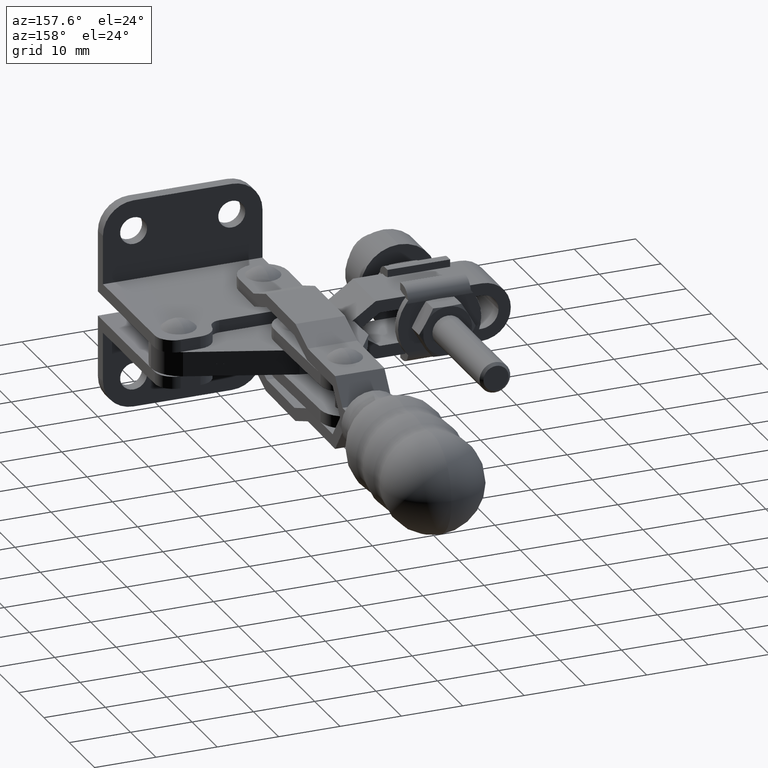
[diagram: clean part render]
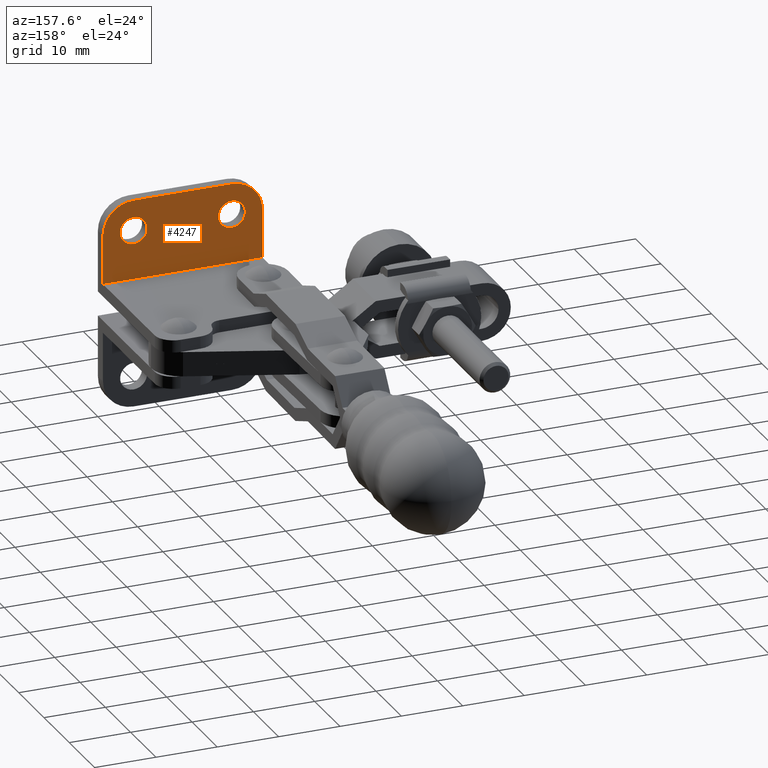
[diagram: same view with one face highlighted and labeled with its STEP entity id]
A machine part, auxiliary view. The second image highlights one B-rep face of the part: STEP entity #4247.
In plain terms, the highlighted planar face has unit normal (0, -1, 0).
Its self-contained STEP definition (entity closure, byte-faithful):
#130 = VERTEX_POINT ( 'NONE', #5649 ) ;
#386 = DIRECTION ( 'NONE',  ( 0.0000000000000000000, -1.000000000000000000, 0.0000000000000000000 ) ) ;
#496 = VERTEX_POINT ( 'NONE', #1869 ) ;
#507 = FACE_BOUND ( 'NONE', #4465, .T. ) ;
#584 = EDGE_CURVE ( 'NONE', #130, #8646, #9175, .T. ) ;
#701 = CARTESIAN_POINT ( 'NONE',  ( -5.000000000000060400, 2.000000000000000000, 7.799999999999975000 ) ) ;
#756 = DIRECTION ( 'NONE',  ( 1.000000000000000000, 0.0000000000000000000, 0.0000000000000000000 ) ) ;
#786 = CARTESIAN_POINT ( 'NONE',  ( -20.99999999999996400, 2.000000000000000000, 10.00000000000001100 ) ) ;
#802 = CARTESIAN_POINT ( 'NONE',  ( -5.000000000000059500, 2.000000000000000000, 15.00000000000001400 ) ) ;
#860 = CARTESIAN_POINT ( 'NONE',  ( -25.99999999999996800, 2.000000000000000000, 2.000000000000001800 ) ) ;
#909 = EDGE_CURVE ( 'NONE', #496, #130, #3464, .T. ) ;
#1222 = EDGE_CURVE ( 'NONE', #4986, #4198, #3747, .T. ) ;
#1271 = DIRECTION ( 'NONE',  ( -1.000000000000000000, -0.0000000000000000000, -0.0000000000000000000 ) ) ;
#1385 = LINE ( 'NONE', #7089, #9017 ) ;
#1516 = ORIENTED_EDGE ( 'NONE', *, *, #3374, .T. ) ;
#1658 = DIRECTION ( 'NONE',  ( 0.0000000000000000000, 0.0000000000000000000, -1.000000000000000000 ) ) ;
#1695 = LINE ( 'NONE', #11131, #5760 ) ;
#1799 = EDGE_CURVE ( 'NONE', #3948, #496, #1385, .T. ) ;
#1831 = AXIS2_PLACEMENT_3D ( 'NONE', #8469, #2607, #9197 ) ;
#1869 = CARTESIAN_POINT ( 'NONE',  ( -20.99999999999996400, 2.000000000000000000, 15.00000000000001400 ) ) ;
#1909 = CARTESIAN_POINT ( 'NONE',  ( -5.000000000000060400, 2.000000000000000000, 10.00000000000001100 ) ) ;
#2242 = DIRECTION ( 'NONE',  ( 0.0000000000000000000, -1.000000000000000000, 0.0000000000000000000 ) ) ;
#2280 = VECTOR ( 'NONE', #2378, 1000.000000000000000 ) ;
#2378 = DIRECTION ( 'NONE',  ( -5.637851296924616700E-015, 0.0000000000000000000, 1.000000000000000000 ) ) ;
#2607 = DIRECTION ( 'NONE',  ( 0.0000000000000000000, -1.000000000000000000, 0.0000000000000000000 ) ) ;
#2758 = DIRECTION ( 'NONE',  ( 0.0000000000000000000, 0.0000000000000000000, -1.000000000000000000 ) ) ;
#2771 = EDGE_LOOP ( 'NONE', ( #8956, #1516 ) ) ;
#2975 = PLANE ( 'NONE',  #10672 ) ;
#3133 = AXIS2_PLACEMENT_3D ( 'NONE', #786, #6839, #1658 ) ;
#3139 = CARTESIAN_POINT ( 'NONE',  ( -5.000000000000060400, 2.000000000000000000, 10.00000000000001100 ) ) ;
#3279 = ORIENTED_EDGE ( 'NONE', *, *, #1799, .F. ) ;
#3299 = ORIENTED_EDGE ( 'NONE', *, *, #8550, .F. ) ;
#3374 = EDGE_CURVE ( 'NONE', #4198, #4986, #7030, .T. ) ;
#3390 = CIRCLE ( 'NONE', #5593, 5.000000000000004400 ) ;
#3464 = CIRCLE ( 'NONE', #1831, 5.000000000000004400 ) ;
#3723 = CARTESIAN_POINT ( 'NONE',  ( -20.99999999999996400, 2.000000000000000000, 10.00000000000001100 ) ) ;
#3747 = CIRCLE ( 'NONE', #5470, 2.200000000000035300 ) ;
#3937 = ORIENTED_EDGE ( 'NONE', *, *, #6422, .T. ) ;
#3948 = VERTEX_POINT ( 'NONE', #802 ) ;
#4016 = DIRECTION ( 'NONE',  ( 0.0000000000000000000, 0.0000000000000000000, -1.000000000000000000 ) ) ;
#4198 = VERTEX_POINT ( 'NONE', #8977 ) ;
#4247 = ADVANCED_FACE ( 'NONE', ( #507, #7428, #5139 ), #2975, .F. ) ;
#4465 = EDGE_LOOP ( 'NONE', ( #7310, #3937 ) ) ;
#4606 = DIRECTION ( 'NONE',  ( 0.0000000000000000000, 0.0000000000000000000, -1.000000000000000000 ) ) ;
#4728 = CARTESIAN_POINT ( 'NONE',  ( -20.99999999999996400, 2.000000000000000000, 10.00000000000001100 ) ) ;
#4986 = VERTEX_POINT ( 'NONE', #701 ) ;
#5139 = FACE_OUTER_BOUND ( 'NONE', #9484, .T. ) ;
#5470 = AXIS2_PLACEMENT_3D ( 'NONE', #1909, #2242, #10943 ) ;
#5593 = AXIS2_PLACEMENT_3D ( 'NONE', #3139, #9206, #4016 ) ;
#5649 = CARTESIAN_POINT ( 'NONE',  ( -25.99999999999996800, 2.000000000000000000, 10.00000000000001100 ) ) ;
#5760 = VECTOR ( 'NONE', #756, 1000.000000000000000 ) ;
#6374 = CARTESIAN_POINT ( 'NONE',  ( -5.551115123125782700E-014, 2.000000000000000000, 10.00000000000001100 ) ) ;
#6409 = CARTESIAN_POINT ( 'NONE',  ( -20.99999999999996400, 2.000000000000000000, 12.19999999999999000 ) ) ;
#6422 = EDGE_CURVE ( 'NONE', #10904, #7924, #8577, .T. ) ;
#6440 = DIRECTION ( 'NONE',  ( 0.0000000000000000000, -0.0000000000000000000, -1.000000000000000000 ) ) ;
#6577 = VECTOR ( 'NONE', #2758, 1000.000000000000000 ) ;
#6839 = DIRECTION ( 'NONE',  ( 0.0000000000000000000, -1.000000000000000000, 0.0000000000000000000 ) ) ;
#6885 = LINE ( 'NONE', #8436, #2280 ) ;
#6932 = CARTESIAN_POINT ( 'NONE',  ( -25.99999999999996800, 2.000000000000000000, 10.00000000000001100 ) ) ;
#7030 = CIRCLE ( 'NONE', #9436, 2.200000000000035300 ) ;
#7089 = CARTESIAN_POINT ( 'NONE',  ( -20.99999999999996400, 2.000000000000000000, 15.00000000000001400 ) ) ;
#7307 = EDGE_CURVE ( 'NONE', #9623, #10865, #6885, .T. ) ;
#7310 = ORIENTED_EDGE ( 'NONE', *, *, #10043, .T. ) ;
#7428 = FACE_BOUND ( 'NONE', #2771, .T. ) ;
#7924 = VERTEX_POINT ( 'NONE', #10224 ) ;
#7973 = CARTESIAN_POINT ( 'NONE',  ( 4.934324553889581300E-015, 2.000000000000000000, 2.000000000000000000 ) ) ;
#8005 = DIRECTION ( 'NONE',  ( 0.0000000000000000000, 0.0000000000000000000, -1.000000000000000000 ) ) ;
#8113 = DIRECTION ( 'NONE',  ( 0.0000000000000000000, -1.000000000000000000, 0.0000000000000000000 ) ) ;
#8189 = CARTESIAN_POINT ( 'NONE',  ( -5.000000000000060400, 2.000000000000000000, 10.00000000000001100 ) ) ;
#8436 = CARTESIAN_POINT ( 'NONE',  ( -1.040834085586084300E-014, 2.000000000000000000, 2.000000000000001800 ) ) ;
#8447 = ORIENTED_EDGE ( 'NONE', *, *, #7307, .F. ) ;
#8469 = CARTESIAN_POINT ( 'NONE',  ( -20.99999999999996400, 2.000000000000000000, 10.00000000000001100 ) ) ;
#8550 = EDGE_CURVE ( 'NONE', #8646, #9623, #1695, .T. ) ;
#8577 = CIRCLE ( 'NONE', #10407, 2.199999999999979700 ) ;
#8646 = VERTEX_POINT ( 'NONE', #860 ) ;
#8956 = ORIENTED_EDGE ( 'NONE', *, *, #1222, .T. ) ;
#8977 = CARTESIAN_POINT ( 'NONE',  ( -5.000000000000060400, 2.000000000000000000, 12.20000000000004500 ) ) ;
#9017 = VECTOR ( 'NONE', #1271, 1000.000000000000000 ) ;
#9175 = LINE ( 'NONE', #6932, #6577 ) ;
#9197 = DIRECTION ( 'NONE',  ( 0.0000000000000000000, 0.0000000000000000000, -1.000000000000000000 ) ) ;
#9206 = DIRECTION ( 'NONE',  ( 0.0000000000000000000, -1.000000000000000000, 0.0000000000000000000 ) ) ;
#9257 = CIRCLE ( 'NONE', #3133, 2.199999999999979700 ) ;
#9410 = ORIENTED_EDGE ( 'NONE', *, *, #584, .F. ) ;
#9436 = AXIS2_PLACEMENT_3D ( 'NONE', #8189, #8113, #8005 ) ;
#9484 = EDGE_LOOP ( 'NONE', ( #10196, #3279, #9523, #8447, #3299, #9410 ) ) ;
#9523 = ORIENTED_EDGE ( 'NONE', *, *, #10452, .F. ) ;
#9623 = VERTEX_POINT ( 'NONE', #7973 ) ;
#9801 = DIRECTION ( 'NONE',  ( 0.0000000000000000000, -1.000000000000000000, 0.0000000000000000000 ) ) ;
#10043 = EDGE_CURVE ( 'NONE', #7924, #10904, #9257, .T. ) ;
#10196 = ORIENTED_EDGE ( 'NONE', *, *, #909, .F. ) ;
#10224 = CARTESIAN_POINT ( 'NONE',  ( -20.99999999999996400, 2.000000000000000000, 7.800000000000030900 ) ) ;
#10407 = AXIS2_PLACEMENT_3D ( 'NONE', #3723, #9801, #4606 ) ;
#10452 = EDGE_CURVE ( 'NONE', #10865, #3948, #3390, .T. ) ;
#10672 = AXIS2_PLACEMENT_3D ( 'NONE', #4728, #386, #6440 ) ;
#10865 = VERTEX_POINT ( 'NONE', #6374 ) ;
#10904 = VERTEX_POINT ( 'NONE', #6409 ) ;
#10943 = DIRECTION ( 'NONE',  ( 0.0000000000000000000, 0.0000000000000000000, -1.000000000000000000 ) ) ;
#11131 = CARTESIAN_POINT ( 'NONE',  ( -25.99999999999996800, 2.000000000000000000, 2.000000000000001800 ) ) ;